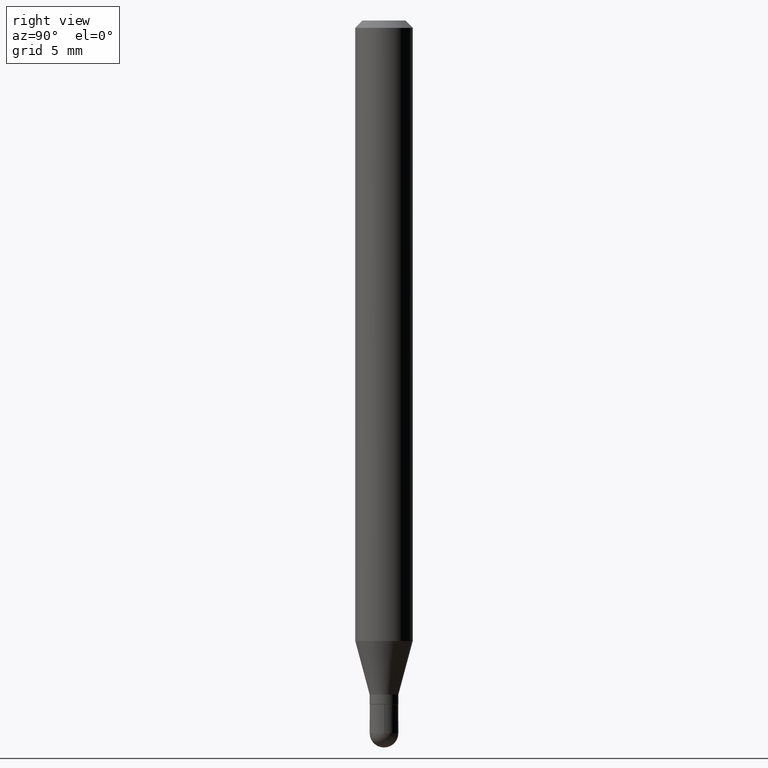
[diagram: clean part render]
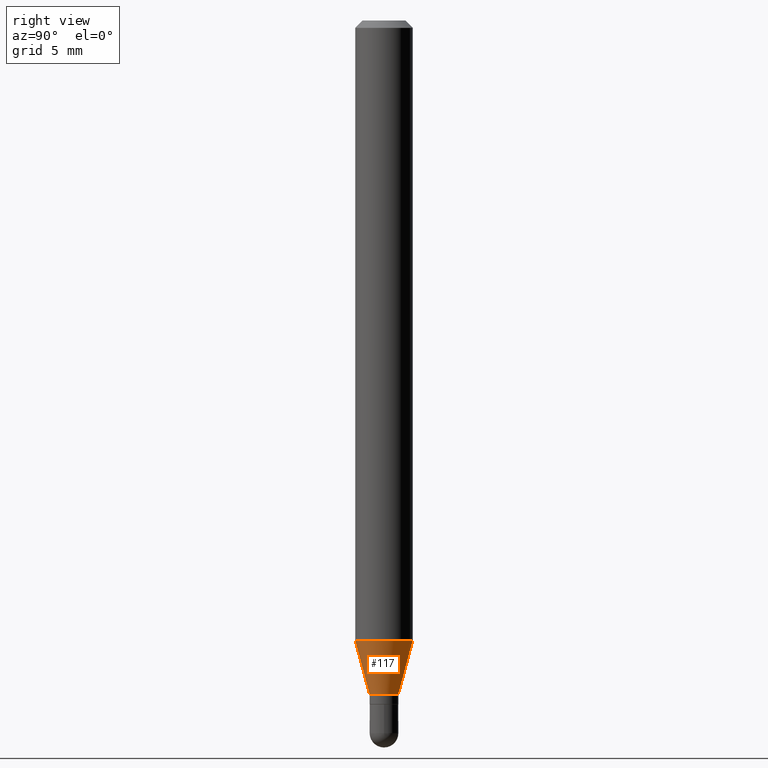
[diagram: same view with one face highlighted and labeled with its STEP entity id]
A machine part, right view. The second image highlights one B-rep face of the part: STEP entity #117.
In plain terms, the highlighted conical surface has half-angle 15 deg.
Its self-contained STEP definition (entity closure, byte-faithful):
#13 = CARTESIAN_POINT ( 'NONE',  ( -4.123439461173429220E-16, -0.05905000000000448085, -1.277004501176717932 ) ) ;
#21 = ORIENTED_EDGE ( 'NONE', *, *, #466, .F. ) ;
#30 = VERTEX_POINT ( 'NONE', #482 ) ;
#36 = FACE_OUTER_BOUND ( 'NONE', #158, .T. ) ;
#47 = ORIENTED_EDGE ( 'NONE', *, *, #143, .T. ) ;
#54 = VERTEX_POINT ( 'NONE', #313 ) ;
#71 = DIRECTION ( 'NONE',  ( -6.982962677686265922E-15, -1.000000000000000000, 0.000000000000000000 ) ) ;
#76 = CONICAL_SURFACE ( 'NONE', #497, 0.02954999999999992355, 0.2617993877991506291 ) ;
#104 = CARTESIAN_POINT ( 'NONE',  ( 3.392145893036484860E-29, -4.842982050702778120E-15, -1.387099999999999778 ) ) ;
#107 = DIRECTION ( 'NONE',  ( -2.445494840340628383E-29, 3.491444056450709535E-15, 1.000000000000000000 ) ) ;
#117 = ADVANCED_FACE ( 'NONE', ( #36 ), #76, .T. ) ;
#121 = VECTOR ( 'NONE', #415, 39.37007874015748143 ) ;
#122 = AXIS2_PLACEMENT_3D ( 'NONE', #486, #377, #123 ) ;
#123 = DIRECTION ( 'NONE',  ( -6.982962677686265922E-15, -1.000000000000000000, 4.626330217890369336E-15 ) ) ;
#131 = DIRECTION ( 'NONE',  ( -1.807323732225332900E-15, -0.2588190451025185190, 0.9659258262890689783 ) ) ;
#143 = EDGE_CURVE ( 'NONE', #54, #339, #487, .T. ) ;
#158 = EDGE_LOOP ( 'NONE', ( #286, #47, #445, #21 ) ) ;
#159 = EDGE_CURVE ( 'NONE', #30, #54, #287, .T. ) ;
#166 = CARTESIAN_POINT ( 'NONE',  ( 4.195754854663701106E-16, 0.05904999999999551580, -1.277004501176718376 ) ) ;
#213 = CARTESIAN_POINT ( 'NONE',  ( 2.099653784171429334E-16, 0.02954999999999508020, -1.387099999999999778 ) ) ;
#274 = DIRECTION ( 'NONE',  ( -6.982962677686265922E-15, -1.000000000000000000, 0.000000000000000000 ) ) ;
#278 = VECTOR ( 'NONE', #131, 39.37007874015748854 ) ;
#286 = ORIENTED_EDGE ( 'NONE', *, *, #159, .T. ) ;
#287 = CIRCLE ( 'NONE', #399, 0.02954999999999992355 ) ;
#311 = CARTESIAN_POINT ( 'NONE',  ( 3.392145893036484860E-29, -4.842982050702778120E-15, -1.387099999999999778 ) ) ;
#313 = CARTESIAN_POINT ( 'NONE',  ( 3.147704319417567192E-16, 0.02954999999999508020, -1.387099999999999778 ) ) ;
#339 = VERTEX_POINT ( 'NONE', #166 ) ;
#355 = EDGE_CURVE ( 'NONE', #364, #339, #470, .T. ) ;
#364 = VERTEX_POINT ( 'NONE', #13 ) ;
#377 = DIRECTION ( 'NONE',  ( -2.445494840340628383E-29, 3.491444056450709535E-15, 1.000000000000000000 ) ) ;
#399 = AXIS2_PLACEMENT_3D ( 'NONE', #104, #107, #274 ) ;
#415 = DIRECTION ( 'NONE',  ( 1.839019923739602682E-15, 0.2588190451025252914, 0.9659258262890670910 ) ) ;
#425 = LINE ( 'NONE', #459, #278 ) ;
#439 = DIRECTION ( 'NONE',  ( -2.445494840340628383E-29, 3.491444056450709535E-15, 1.000000000000000000 ) ) ;
#445 = ORIENTED_EDGE ( 'NONE', *, *, #355, .F. ) ;
#459 = CARTESIAN_POINT ( 'NONE',  ( -2.063465471255947033E-16, -0.02955000000000476690, -1.387099999999999778 ) ) ;
#466 = EDGE_CURVE ( 'NONE', #30, #364, #425, .T. ) ;
#470 = CIRCLE ( 'NONE', #122, 0.05904999999999999832 ) ;
#482 = CARTESIAN_POINT ( 'NONE',  ( -2.063465471255947033E-16, -0.02955000000000476690, -1.387099999999999778 ) ) ;
#486 = CARTESIAN_POINT ( 'NONE',  ( 3.122907918719422036E-29, -4.458589775694255755E-15, -1.277004501176718154 ) ) ;
#487 = LINE ( 'NONE', #213, #121 ) ;
#497 = AXIS2_PLACEMENT_3D ( 'NONE', #311, #439, #71 ) ;